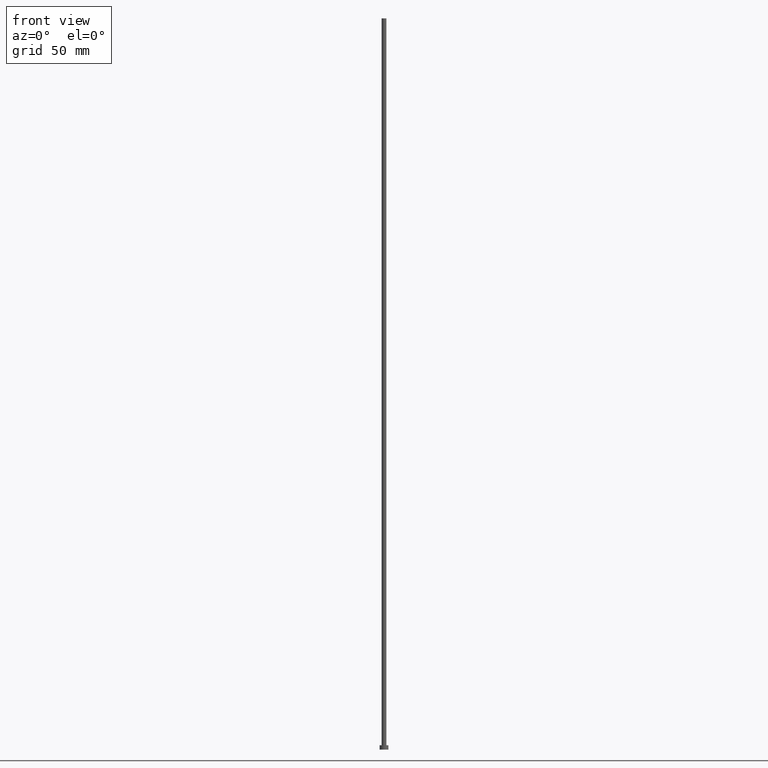
[diagram: clean part render]
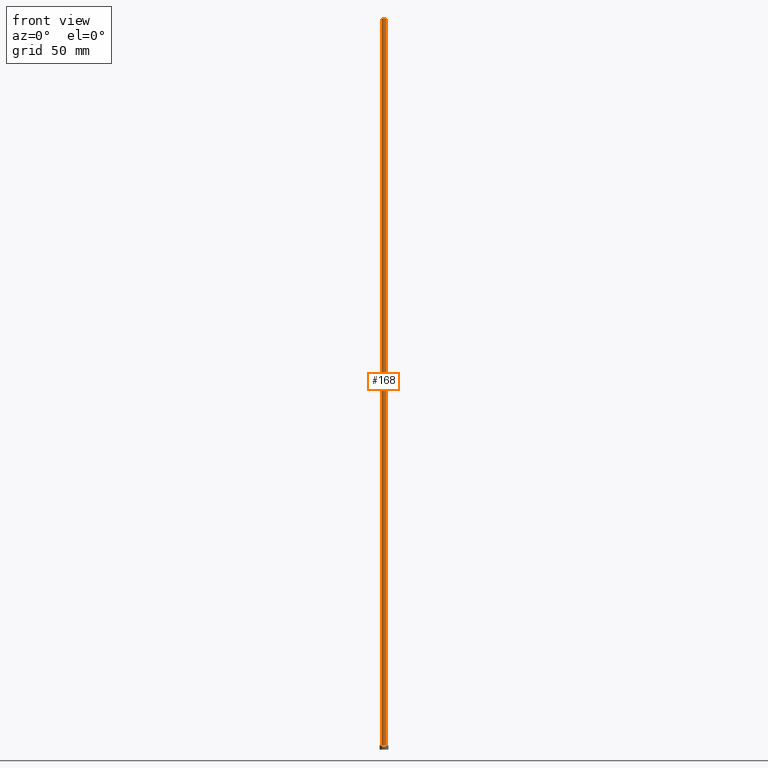
[diagram: same view with one face highlighted and labeled with its STEP entity id]
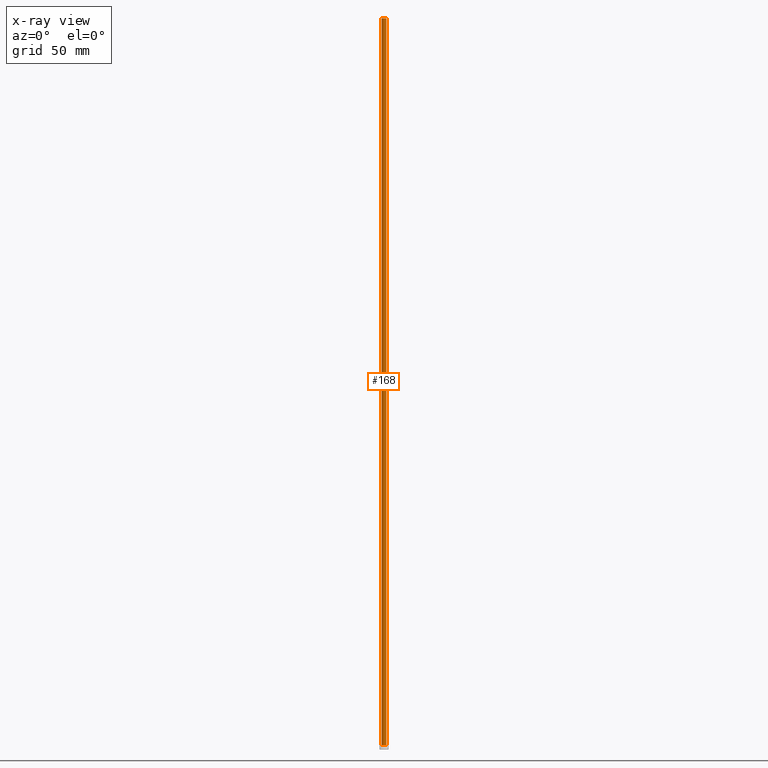
[diagram: x-ray of the same camera — body ghosted, the highlighted face saturated]
A machine part, front view. The second image highlights one B-rep face of the part: STEP entity #168.
The next image is the same camera in x-ray: the body ghosted, the highlighted face saturated — about 0% of this face is hidden behind the body in this view.
In plain terms, the highlighted cylindrical surface (edge-blend (fillet) strip) has radius 1.6 mm, axis along (-0, -0, -1).
Its self-contained STEP definition (entity closure, byte-faithful):
#1 = ORIENTED_EDGE ( 'NONE', *, *, #108, .F. ) ;
#2 = ORIENTED_EDGE ( 'NONE', *, *, #55, .T. ) ;
#4 = CYLINDRICAL_SURFACE ( 'NONE', #116, 1.600000000000000089 ) ;
#16 = CARTESIAN_POINT ( 'NONE',  ( 1.600000000000000089, 1.959434878635764737E-16, 500.0000000000000000 ) ) ;
#17 = VERTEX_POINT ( 'NONE', #149 ) ;
#19 = DIRECTION ( 'NONE',  ( 0.000000000000000000, 0.000000000000000000, 1.000000000000000000 ) ) ;
#22 = CIRCLE ( 'NONE', #197, 1.600000000000000089 ) ;
#39 = CARTESIAN_POINT ( 'NONE',  ( -1.600000000000000089, 0.000000000000000000, 500.0000000000000000 ) ) ;
#43 = DIRECTION ( 'NONE',  ( 1.000000000000000000, 0.000000000000000000, 0.000000000000000000 ) ) ;
#51 = CARTESIAN_POINT ( 'NONE',  ( 0.000000000000000000, 0.000000000000000000, 500.0000000000000000 ) ) ;
#55 = EDGE_CURVE ( 'NONE', #183, #129, #160, .T. ) ;
#57 = CARTESIAN_POINT ( 'NONE',  ( 1.600000000000000089, 1.959434878635764737E-16, 500.0000000000000000 ) ) ;
#77 = EDGE_CURVE ( 'NONE', #198, #17, #123, .T. ) ;
#78 = DIRECTION ( 'NONE',  ( -0.000000000000000000, -0.000000000000000000, -1.000000000000000000 ) ) ;
#85 = DIRECTION ( 'NONE',  ( -0.000000000000000000, -0.000000000000000000, -1.000000000000000000 ) ) ;
#86 = DIRECTION ( 'NONE',  ( -1.000000000000000000, 0.000000000000000000, 0.000000000000000000 ) ) ;
#93 = EDGE_LOOP ( 'NONE', ( #220, #1, #2, #143 ) ) ;
#108 = EDGE_CURVE ( 'NONE', #183, #198, #22, .T. ) ;
#116 = AXIS2_PLACEMENT_3D ( 'NONE', #230, #78, #86 ) ;
#123 = LINE ( 'NONE', #16, #245 ) ;
#129 = VERTEX_POINT ( 'NONE', #132 ) ;
#130 = CARTESIAN_POINT ( 'NONE',  ( 0.000000000000000000, 0.000000000000000000, 3.000000000000000000 ) ) ;
#132 = CARTESIAN_POINT ( 'NONE',  ( -1.600000000000000089, 0.000000000000000000, 3.000000000000000000 ) ) ;
#138 = FACE_OUTER_BOUND ( 'NONE', #93, .T. ) ;
#143 = ORIENTED_EDGE ( 'NONE', *, *, #243, .T. ) ;
#146 = AXIS2_PLACEMENT_3D ( 'NONE', #130, #19, #43 ) ;
#149 = CARTESIAN_POINT ( 'NONE',  ( 1.600000000000000089, 1.959434878635764737E-16, 3.000000000000000000 ) ) ;
#157 = DIRECTION ( 'NONE',  ( -0.000000000000000000, -0.000000000000000000, -1.000000000000000000 ) ) ;
#160 = LINE ( 'NONE', #241, #231 ) ;
#165 = CIRCLE ( 'NONE', #146, 1.600000000000000089 ) ;
#168 = ADVANCED_FACE ( 'NONE', ( #138 ), #4, .T. ) ;
#173 = DIRECTION ( 'NONE',  ( 1.000000000000000000, 0.000000000000000000, 0.000000000000000000 ) ) ;
#183 = VERTEX_POINT ( 'NONE', #39 ) ;
#197 = AXIS2_PLACEMENT_3D ( 'NONE', #51, #209, #173 ) ;
#198 = VERTEX_POINT ( 'NONE', #57 ) ;
#209 = DIRECTION ( 'NONE',  ( 0.000000000000000000, 0.000000000000000000, 1.000000000000000000 ) ) ;
#220 = ORIENTED_EDGE ( 'NONE', *, *, #77, .F. ) ;
#230 = CARTESIAN_POINT ( 'NONE',  ( 0.000000000000000000, 0.000000000000000000, 500.0000000000000000 ) ) ;
#231 = VECTOR ( 'NONE', #157, 1000.000000000000000 ) ;
#241 = CARTESIAN_POINT ( 'NONE',  ( -1.600000000000000089, 0.000000000000000000, 500.0000000000000000 ) ) ;
#243 = EDGE_CURVE ( 'NONE', #129, #17, #165, .T. ) ;
#245 = VECTOR ( 'NONE', #85, 1000.000000000000000 ) ;